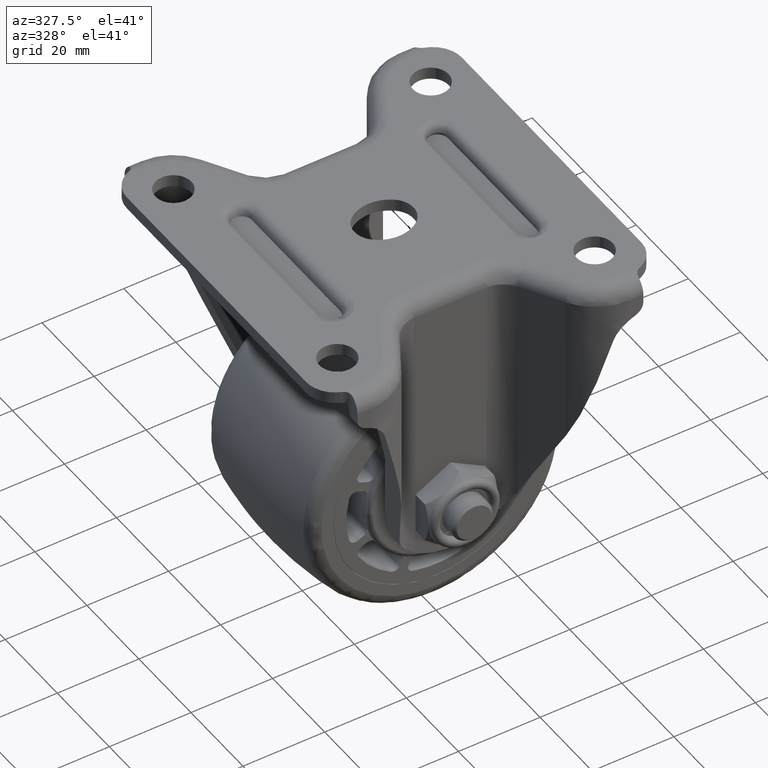
[diagram: clean part render]
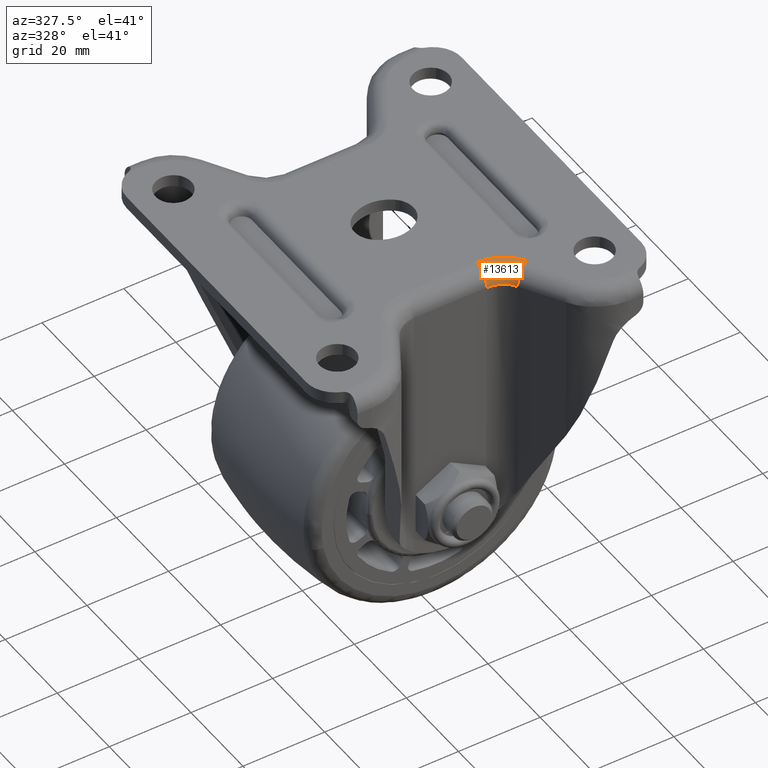
[diagram: same view with one face highlighted and labeled with its STEP entity id]
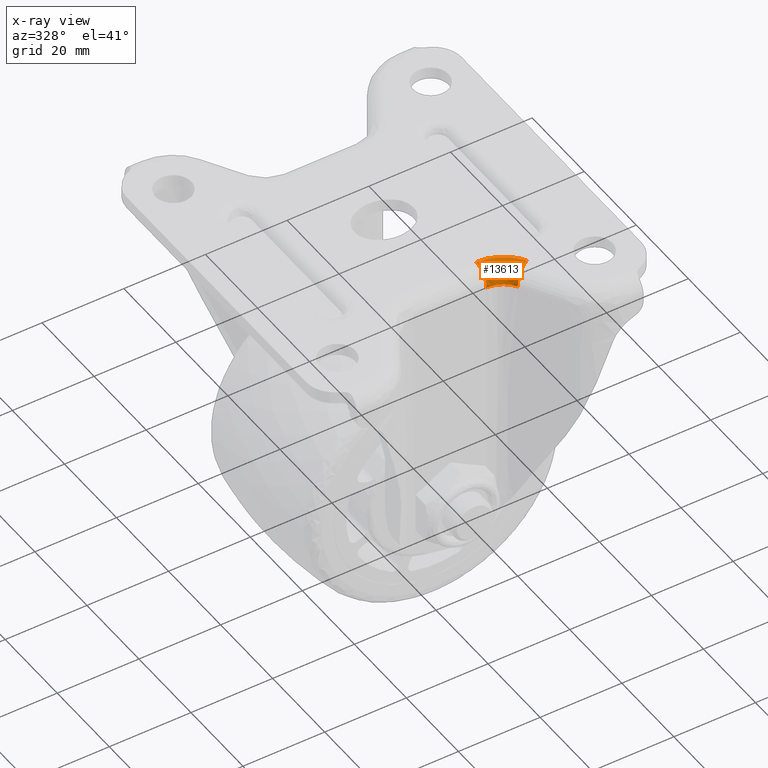
[diagram: x-ray of the same camera — body ghosted, the highlighted face saturated]
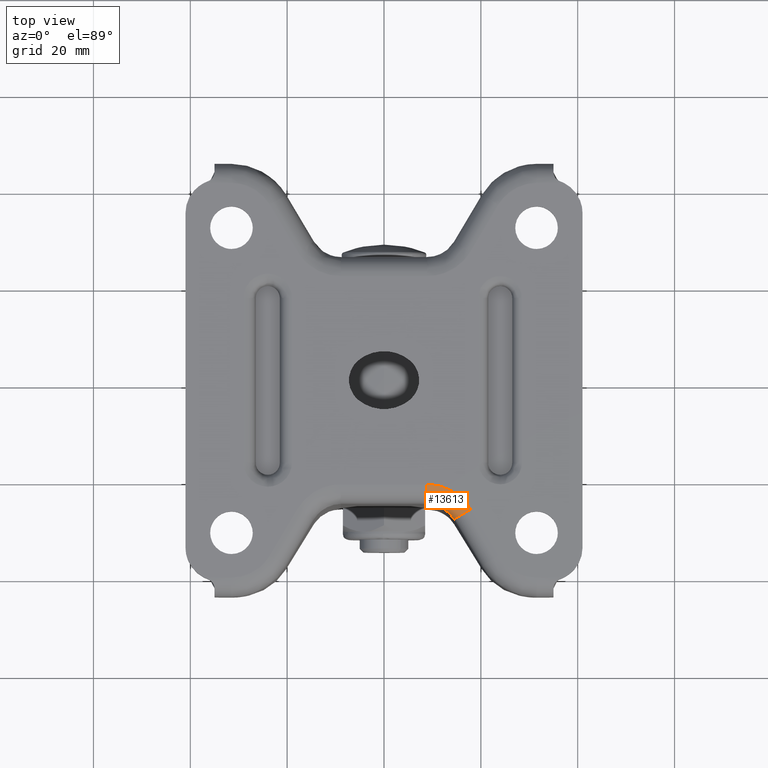
[diagram: same view with one face highlighted and labeled with its STEP entity id]
A machine part, auxiliary view. The second image highlights one B-rep face of the part: STEP entity #13613.
The next image is the same camera in x-ray: the body ghosted, the highlighted face saturated — about 0% of this face is hidden behind the body in this view.
A second angle (top view) of the same face is appended — the face is thin or edge-on in the first view.
In plain terms, the highlighted face is a freeform B-spline surface patch.
Its self-contained STEP definition (entity closure, byte-faithful):
#11015=CARTESIAN_POINT('',(14.468953329208960,-28.679387027177000,53.500000000000000));
#11016=VERTEX_POINT('',#11015);
#11022=CARTESIAN_POINT('',(8.881149699124141,-25.499996999999851,53.500000000000000));
#11023=VERTEX_POINT('',#11022);
#11024=CARTESIAN_POINT('',(14.468953329208960,-28.679387027177000,53.500000000000000));
#11025=CARTESIAN_POINT('',(14.200654171041760,-28.227663544376391,53.499999999999922));
#11026=CARTESIAN_POINT('',(13.618335260975170,-27.473681236351819,53.500000000000313));
#11027=CARTESIAN_POINT('',(12.672429770109950,-26.684846951117098,53.499999999999702));
#11028=CARTESIAN_POINT('',(11.765748603589151,-26.149420931464132,53.500000000000448));
#11029=CARTESIAN_POINT('',(10.562226648150450,-25.657412175408730,53.499999999999652));
#11030=CARTESIAN_POINT('',(9.546690893789881,-25.499648391414830,53.500000000000028));
#11031=CARTESIAN_POINT('',(8.881149699124141,-25.499996999999851,53.500000000000000));
#11032=B_SPLINE_CURVE_WITH_KNOTS('',3,(#11024,#11025,#11026,#11027,#11028,#11029,#11030,#11031),.UNSPECIFIED.,.F.,.U.,(4,1,1,1,1,4),(0.000000048028967,1.576176871263506,2.837143309059174,3.677720981565352,4.728526444312887,6.725024363028693),.UNSPECIFIED.);
#11033=EDGE_CURVE('',#11016,#11023,#11032,.T.);
#13541=CARTESIAN_POINT('',(17.907601716953501,-26.635934736209052,57.500000000000000));
#13542=VERTEX_POINT('',#13541);
#13543=CARTESIAN_POINT('',(17.907601716953501,-26.635934736209052,57.500000000000000));
#13544=CARTESIAN_POINT('',(17.612203942217239,-26.811477912325309,57.500104279473049));
#13545=CARTESIAN_POINT('',(17.035528564678842,-27.154173206666911,57.413014804058392));
#13546=CARTESIAN_POINT('',(16.298598437315061,-27.592101539907421,57.070253265133957));
#13547=CARTESIAN_POINT('',(15.655281559742679,-27.974399233378730,56.563494174977933));
#13548=CARTESIAN_POINT('',(15.186211030770830,-28.253149235987109,55.990428557693988));
#13549=CARTESIAN_POINT('',(14.804940186231720,-28.479723370036179,55.280398422696180));
#13550=CARTESIAN_POINT('',(14.540091254155669,-28.637112581140361,54.481701429906941));
#13551=CARTESIAN_POINT('',(14.468862309585671,-28.679441116527389,53.843619094143719));
#13552=CARTESIAN_POINT('',(14.468953329208960,-28.679387027177000,53.500000000000000));
#13553=B_SPLINE_CURVE_WITH_KNOTS('',3,(#13543,#13544,#13545,#13546,#13547,#13548,#13549,#13550,#13551,#13552),.UNSPECIFIED.,.F.,.U.,(4,1,1,1,1,1,1,4),(0.000000159531333,1.030839385571847,2.012609762805358,2.748946216011246,3.730631951268237,4.368794564764348,5.252395772052273,6.283224731515887),.UNSPECIFIED.);
#13554=EDGE_CURVE('',#13542,#11016,#13553,.T.);
#13566=CARTESIAN_POINT('',(18.404858954627528,-26.955062324346965,57.490369390560588));
#13567=CARTESIAN_POINT('',(15.196936787348530,-20.899222159975444,57.490369390560573));
#13568=CARTESIAN_POINT('',(8.352170511801084,-21.235584109166243,57.490369390560595));
#13569=CARTESIAN_POINT('',(14.350245381829374,-29.102887301045179,57.809342928815283));
#13570=CARTESIAN_POINT('',(12.508060493060151,-25.625253911619900,57.809342928815283));
#13571=CARTESIAN_POINT('',(8.577377533047390,-25.818413492072509,57.809342928815305));
#13572=CARTESIAN_POINT('',(14.633632410420168,-28.952770470636729,53.221103157115358));
#13573=CARTESIAN_POINT('',(12.695992745938378,-25.294939796334198,53.221103157115380));
#13574=CARTESIAN_POINT('',(8.561637254122433,-25.498108146558646,53.221103157115358));
#13582=(BOUNDED_SURFACE()B_SPLINE_SURFACE(2,2,((#13566,#13569,#13572),(#13567,#13570,#13573),(#13568,#13571,#13574)),.UNSPECIFIED.,.F.,.F.,.U.)B_SPLINE_SURFACE_WITH_KNOTS((3,3),(3,3),(0.0,12.545328366345521),(0.0,7.289481630141426),.UNSPECIFIED.)GEOMETRIC_REPRESENTATION_ITEM()RATIONAL_B_SPLINE_SURFACE(((0.852597545259481,0.557943883963793,0.847874870092193),(0.719034526534363,0.470539610006211,0.715051678446462),(0.851578628484085,0.557277099985512,0.846861597260976)))REPRESENTATION_ITEM('')SURFACE());
#13583=CARTESIAN_POINT('',(8.881149699124130,-21.499996999999851,57.500000000000000));
#13584=VERTEX_POINT('',#13583);
#13585=CARTESIAN_POINT('',(8.881149699124130,-21.499996999999851,57.500000000000000));
#13586=CARTESIAN_POINT('',(8.881149699124123,-21.843603355540349,57.500059915429631));
#13587=CARTESIAN_POINT('',(8.881149699124149,-22.612667075639010,57.400430801698299));
#13588=CARTESIAN_POINT('',(8.881149699124126,-23.597389961288080,56.964039381369020));
#13589=CARTESIAN_POINT('',(8.881149699124130,-24.335356413559410,56.358057205247569));
#13590=CARTESIAN_POINT('',(8.881149699124112,-24.866722021830320,55.710637910458303));
#13591=CARTESIAN_POINT('',(8.881149699124153,-25.350464776997669,54.792375988776008));
#13592=CARTESIAN_POINT('',(8.881149699124132,-25.500444572157900,53.990941453148842));
#13593=CARTESIAN_POINT('',(8.881149699124141,-25.499996999999851,53.500000000000000));
#13594=B_SPLINE_CURVE_WITH_KNOTS('',3,(#13585,#13586,#13587,#13588,#13589,#13590,#13591,#13592,#13593),.UNSPECIFIED.,.F.,.U.,(4,1,1,1,1,1,4),(0.000000159548832,1.030839385584716,2.307136591682471,3.190651378047867,3.877922077137284,4.810594834598797,6.283224731515834),.UNSPECIFIED.);
#13595=EDGE_CURVE('',#13584,#11023,#13594,.T.);
#13596=ORIENTED_EDGE('',*,*,#13595,.T.);
#13597=ORIENTED_EDGE('',*,*,#11033,.F.);
#13598=ORIENTED_EDGE('',*,*,#13554,.F.);
#13599=CARTESIAN_POINT('',(8.881149699124130,-21.499996999999851,57.500000000000000));
#13600=CARTESIAN_POINT('',(9.560114560610437,-21.499907197429629,57.500000000000142));
#13601=CARTESIAN_POINT('',(10.748264329020319,-21.615672837237970,57.499999999999851));
#13602=CARTESIAN_POINT('',(12.526799051621030,-22.101603122491579,57.500000000000007));
#13603=CARTESIAN_POINT('',(14.023018967917860,-22.792217895299100,57.500000000000178));
#13604=CARTESIAN_POINT('',(15.456401316652009,-23.760488908101511,57.499999999999787));
#13605=CARTESIAN_POINT('',(16.768037196169200,-24.976677271561218,57.500000000000391));
#13606=CARTESIAN_POINT('',(17.546373734120738,-26.027880415833550,57.499999999999581));
#13607=CARTESIAN_POINT('',(17.907601716953501,-26.635934736209052,57.500000000000000));
#13608=B_SPLINE_CURVE_WITH_KNOTS('',3,(#13599,#13600,#13601,#13602,#13603,#13604,#13605,#13606,#13607),.UNSPECIFIED.,.F.,.U.,(4,1,1,1,1,1,4),(0.000000046829436,2.036881072717257,3.564567943427040,5.516543608074503,6.959365281536861,8.741654259637402,10.863412188126270),.UNSPECIFIED.);
#13609=EDGE_CURVE('',#13584,#13542,#13608,.T.);
#13610=ORIENTED_EDGE('',*,*,#13609,.F.);
#13611=EDGE_LOOP('',(#13596,#13597,#13598,#13610));
#13612=FACE_OUTER_BOUND('',#13611,.T.);
#13613=ADVANCED_FACE('',(#13612),#13582,.T.);